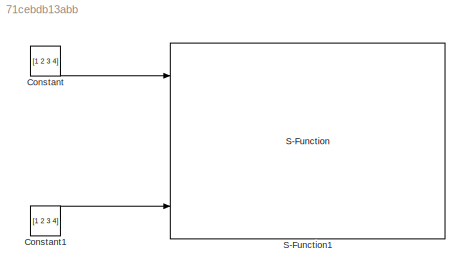
MODEL slx_71cebdb13abb
KIND library
CONFIG AbsTol = auto
CONFIG EnableMultiTasking = off
CONFIG FixedStep = auto
CONFIG MaxStep = auto
CONFIG MinStep = auto
CONFIG RelTol = 1e-3
CONFIG SampleTimeConstraint = Unconstrained
CONFIG Solver = VariableStepAuto
CONFIG SolverName = VariableStepAuto
CONFIG StartTime = 0.0
CONFIG StopTime = 10.0
BLOCK [Constant] Constant
  Value = [1 2 3 4]
  VectorParams1D = off
BLOCK [Constant] Constant1
  Value = [1 2 3 4]
  VectorParams1D = off
BLOCK [S-Function] S-Function1
  EnableBusSupport = off
  FunctionName = cart_pendulum_s_function_level2
  Ports = [5, 1]
  SFcnIsStateOwnerBlock = off
  SFunctionDeploymentMode = off
LINE Constant1:1 -> S-Function1:5
LINE Constant:1 -> S-Function1:1
